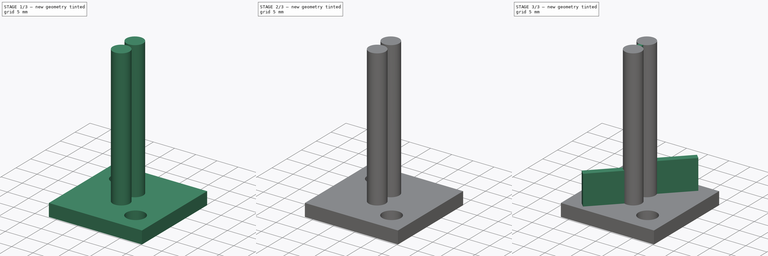
[diagram: build sequence overview — one tinted view per stage of 3, left to right]
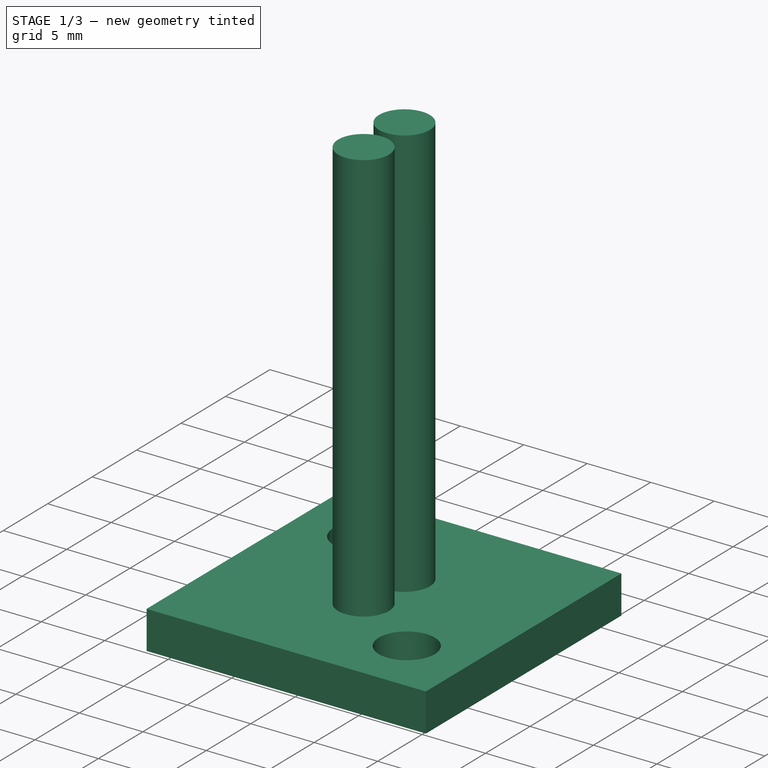
[diagram: stage 1 of 3 — iso view after this stage's code; geometry added in this stage tinted green]
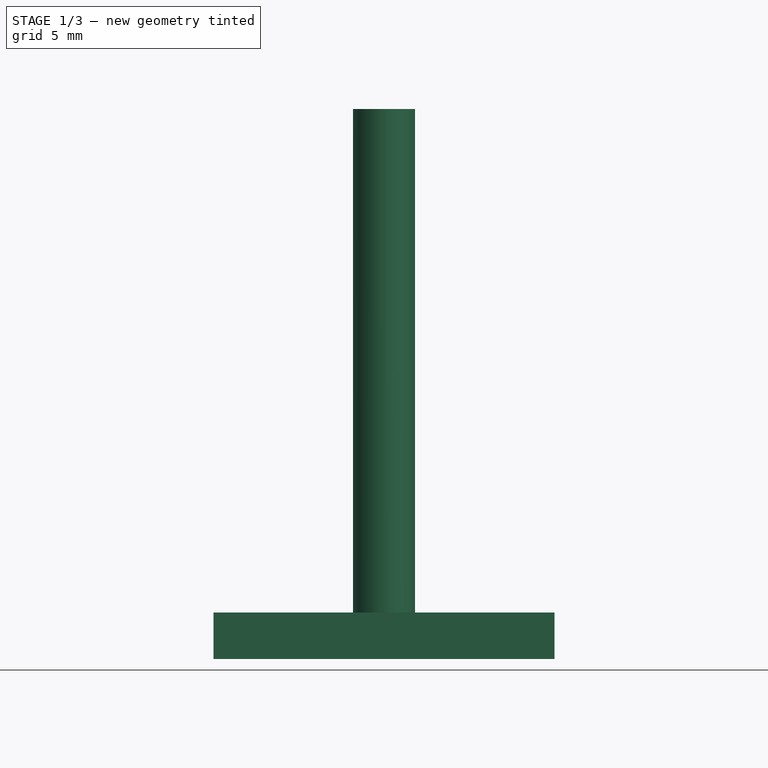
[diagram: stage 1 of 3 — front view after this stage's code; geometry added in this stage tinted green]
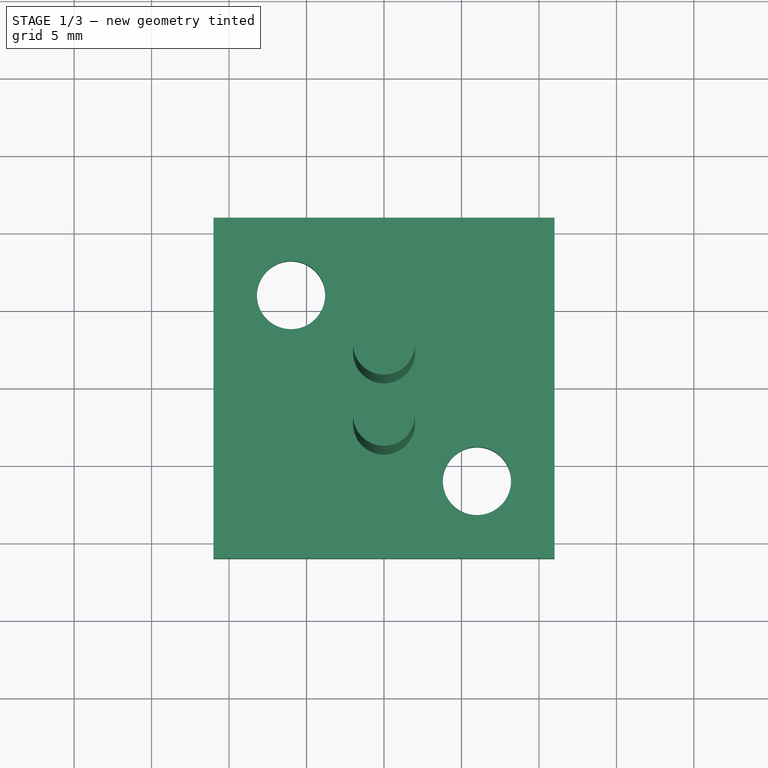
[diagram: stage 1 of 3 — top view after this stage's code; geometry added in this stage tinted green]
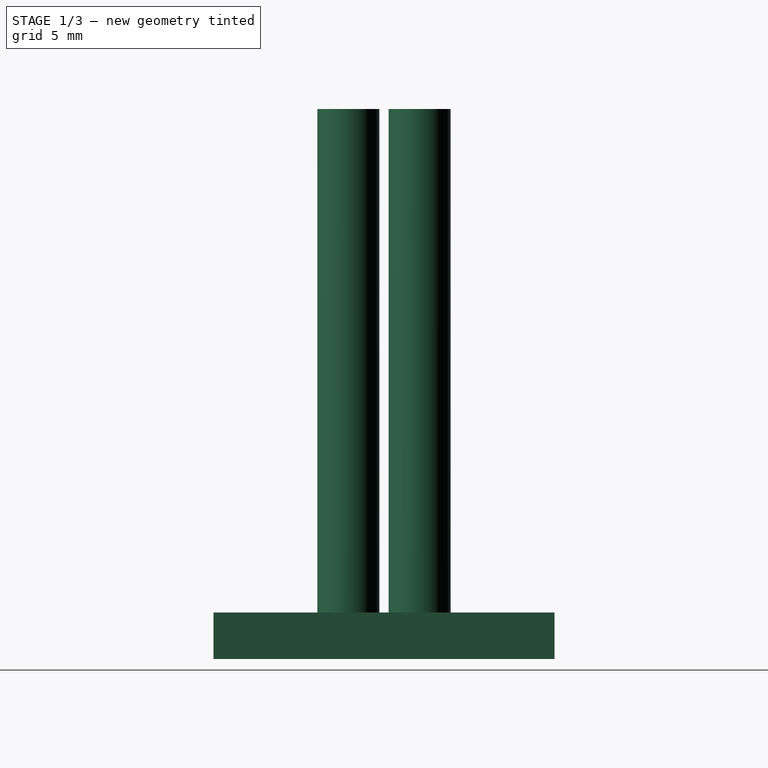
[diagram: stage 1 of 3 — right view after this stage's code; geometry added in this stage tinted green]
FCSTD DOCUMENT  (FreeCAD 0.21R33771 (Git))
Label: 16mm Film Guide
License: All rights reserved
LicenseURL: http://en.wikipedia.org/wiki/All_rights_reserved
objects: Sketcher::SketchObject×6, PartDesign::Pad×5, PartDesign::Body×1, Part::Feature×1
note: 18 computed .brp shape members not serialized (recipe doc carries the construction recipe); baked Part::Feature solids carry a one-line shape summary decoded from their .brp

FEATURE [Sketcher::SketchObject] Sketch  label="Outlines"
  FullyConstrained = true
  MapMode = 5
  Support = -> [XY_Plane]
  sketch-geometry (12):
    g0: LineSegment StartX=-11 StartY=11 StartZ=0 EndX=11 EndY=11 EndZ=0
    g1: LineSegment StartX=11 StartY=11 StartZ=0 EndX=11 EndY=-11 EndZ=0
    g2: LineSegment StartX=11 StartY=-11 StartZ=0 EndX=-11 EndY=-11 EndZ=0
    g3: LineSegment StartX=-11 StartY=-11 StartZ=0 EndX=-11 EndY=11 EndZ=0
    g4: Circle CenterX=-6 CenterY=6 CenterZ=0 NormalX=0 NormalY=0 NormalZ=1 AngleXU=0 Radius=2.2
    g5: Circle CenterX=-6 CenterY=6 CenterZ=0 NormalX=0 NormalY=0 NormalZ=1 AngleXU=0 Radius=4.1
    g6: Circle CenterX=6 CenterY=-6 CenterZ=0 NormalX=0 NormalY=0 NormalZ=1 AngleXU=0 Radius=2.2
    g7: Circle CenterX=6 CenterY=-6 CenterZ=0 NormalX=0 NormalY=0 NormalZ=1 AngleXU=0 Radius=4.1
    g8: Circle CenterX=0 CenterY=2.3 CenterZ=0 NormalX=0 NormalY=0 NormalZ=1 AngleXU=0 Radius=2
    g9: Circle CenterX=0 CenterY=-2.3 CenterZ=0 NormalX=0 NormalY=0 NormalZ=1 AngleXU=0 Radius=2
    g10: GeomPoint X=0 Y=0.3 Z=0
    g11: GeomPoint X=0 Y=-0.3 Z=0
  constraints (30):
    c: Coincident(g0,g1)
    c: Coincident(g1,g2)
    c: Coincident(g2,g3)
    c: Coincident(g3,g0)
    c: Horizontal(g0)
    c: Horizontal(g2)
    c: Vertical(g1)
    c: Vertical(g3)
    c: Coincident(g5,g4)
    c: Radius(g4) = 2.2
    c: Radius(g5) = 4.1
    c: DistanceY(g4,g0) = 5
    c: DistanceX(g0,g4) = 5
    c: Coincident(g7,g6)
    c: Equal(g6,g4)
    c: Equal(g7,g5)
    c: DistanceX(g6,g1) = 5
    c: DistanceY(g1,g6) = 5
    c: PointOnObject(g8,g-2)
    c: PointOnObject(g9,g-2)
    c: Equal(g8,g9)
    c: Radius(g8) = 2
    c: PointOnObject(g10,g8)
    c: PointOnObject(g11,g9)
    c: PointOnObject(g11,g-2)
    c: DistanceY(g11,g10) = 0.6
    c: Symmetric(g10,g11,g-1)
    c: Equal(g1,g0)
    c: Symmetric(g0,g2,g-1)
    c: DistanceX(g0,g0) = 22
FEATURE [Sketcher::SketchObject] Sketch001
  ExternalGeometry = -> [Sketch]
  FullyConstrained = true
  MapMode = 5
  Support = -> [XY_Plane]
  sketch-geometry (6):
    g0: LineSegment StartX=-11 StartY=11 StartZ=0 EndX=11 EndY=11 EndZ=0
    g1: LineSegment StartX=11 StartY=11 StartZ=0 EndX=11 EndY=-11 EndZ=0
    g2: LineSegment StartX=11 StartY=-11 StartZ=0 EndX=-11 EndY=-11 EndZ=0
    g3: LineSegment StartX=-11 StartY=-11 StartZ=0 EndX=-11 EndY=11 EndZ=0
    g4: Circle CenterX=-6 CenterY=6 CenterZ=0 NormalX=0 NormalY=0 NormalZ=1 AngleXU=0 Radius=2.2
    g5: Circle CenterX=6 CenterY=-6 CenterZ=0 NormalX=0 NormalY=0 NormalZ=1 AngleXU=0 Radius=2.2
  constraints (14):
    c: Coincident(g0,g1)
    c: Coincident(g1,g2)
    c: Coincident(g2,g3)
    c: Coincident(g3,g0)
    c: Horizontal(g0)
    c: Horizontal(g2)
    c: Vertical(g1)
    c: Vertical(g3)
    c: Coincident(g0,g-3)
    c: Coincident(g1,g-4)
    c: Coincident(g4,g-5)
    c: Coincident(g5,g-6)
    c: Equal(g5,g4)
    c: Equal(g4,g-5)
FEATURE [PartDesign::Pad] Pad  label="Base"
  Direction = (0,0,1)
  Length = 3
  Length2 = 10
  Profile = -> Sketch001
  ReferenceAxis = -> Sketch001 [N_Axis]
  Type = 0
FEATURE [Sketcher::SketchObject] Sketch002
  ExternalGeometry = -> [Sketch]
  FullyConstrained = true
  MapMode = 5
  Placement = pos=(0,0,3) rot=(0,0,1;0rad)
  Support = -> [Pad]
  sketch-geometry (2):
    g0: Circle CenterX=0 CenterY=2.3 CenterZ=0 NormalX=0 NormalY=0 NormalZ=1 AngleXU=0 Radius=2
    g1: Circle CenterX=0 CenterY=-2.3 CenterZ=0 NormalX=0 NormalY=0 NormalZ=1 AngleXU=0 Radius=2
  constraints (4):
    c: Coincident(g0,g-3)
    c: Coincident(g1,g-4)
    c: Equal(g1,g0)
    c: Equal(g0,g-3)
FEATURE [PartDesign::Pad] Pad001  label="Pins"
  BaseFeature = -> Pad
  Direction = (0,0,1)
  Length = 32.5
  Length2 = 10
  Profile = -> Sketch002
  ReferenceAxis = -> Sketch002 [N_Axis]
  Type = 0
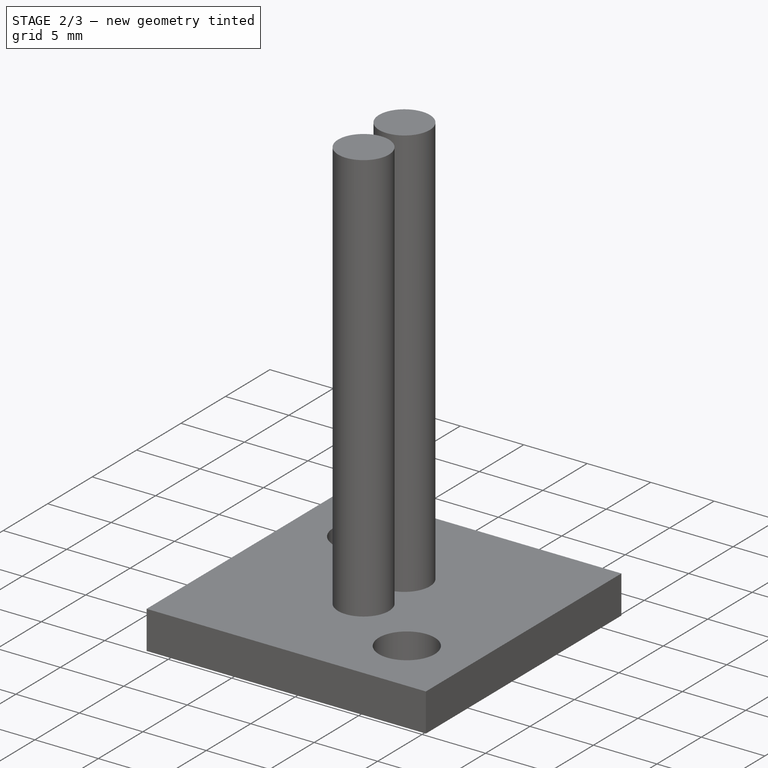
[diagram: stage 2 of 3 — iso view after this stage's code; geometry added in this stage tinted green]
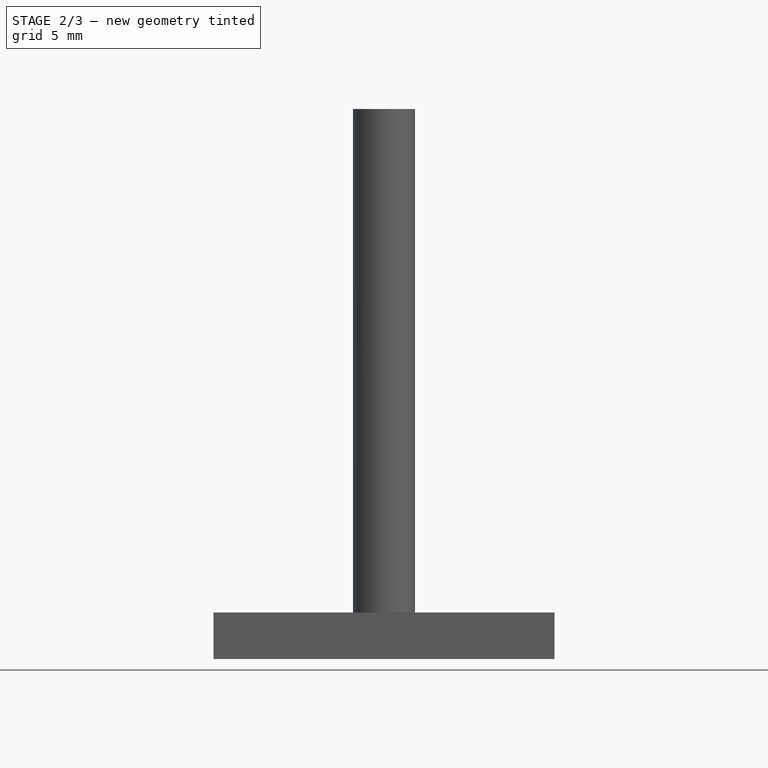
[diagram: stage 2 of 3 — front view after this stage's code; geometry added in this stage tinted green]
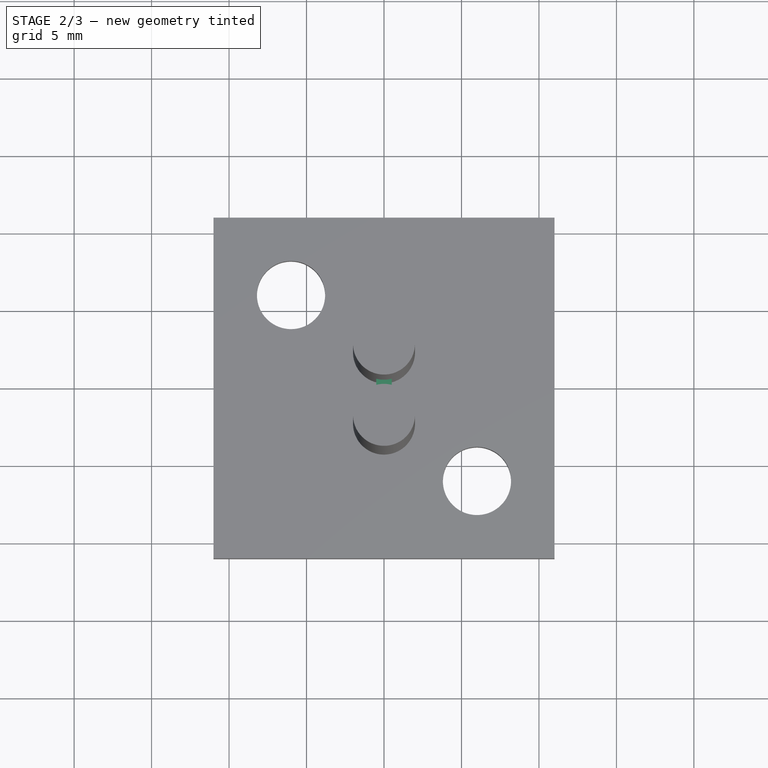
[diagram: stage 2 of 3 — top view after this stage's code; geometry added in this stage tinted green]
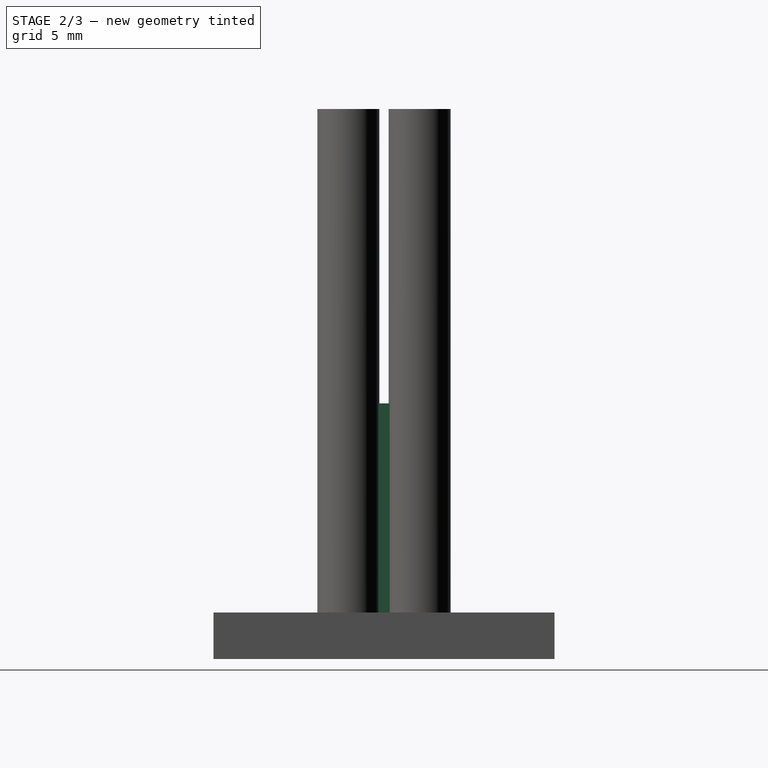
[diagram: stage 2 of 3 — right view after this stage's code; geometry added in this stage tinted green]
FEATURE [Sketcher::SketchObject] Sketch003
  ExternalGeometry = -> [Pad001]
  FullyConstrained = true
  MapMode = 5
  Placement = pos=(0,0,3) rot=(0,0,1;0rad)
  Support = -> [Pad001]
  sketch-geometry (4):
    g0: LineSegment StartX=-0.5 StartY=0.363508 StartZ=0 EndX=0.5 EndY=0.363508 EndZ=0
    g1: LineSegment StartX=0.5 StartY=0.363508 StartZ=0 EndX=0.5 EndY=-0.363508 EndZ=0
    g2: LineSegment StartX=0.5 StartY=-0.363508 StartZ=0 EndX=-0.5 EndY=-0.363508 EndZ=0
    g3: LineSegment StartX=-0.5 StartY=-0.363508 StartZ=0 EndX=-0.5 EndY=0.363508 EndZ=0
  constraints (12):
    c: Coincident(g0,g1)
    c: Coincident(g1,g2)
    c: Coincident(g2,g3)
    c: Coincident(g3,g0)
    c: Horizontal(g0)
    c: Horizontal(g2)
    c: Vertical(g1)
    c: Vertical(g3)
    c: DistanceX(g0,g0) = 1
    c: PointOnObject(g0,g-3)
    c: PointOnObject(g2,g-4)
    c: PointOnObject(g1,g-4)
FEATURE [PartDesign::Pad] Pad002  label="Fill"
  BaseFeature = -> Pad001
  Direction = (0,0,1)
  Length = 13.5
  Length2 = 10
  Profile = -> Sketch003
  ReferenceAxis = -> Sketch003 [N_Axis]
  Type = 0
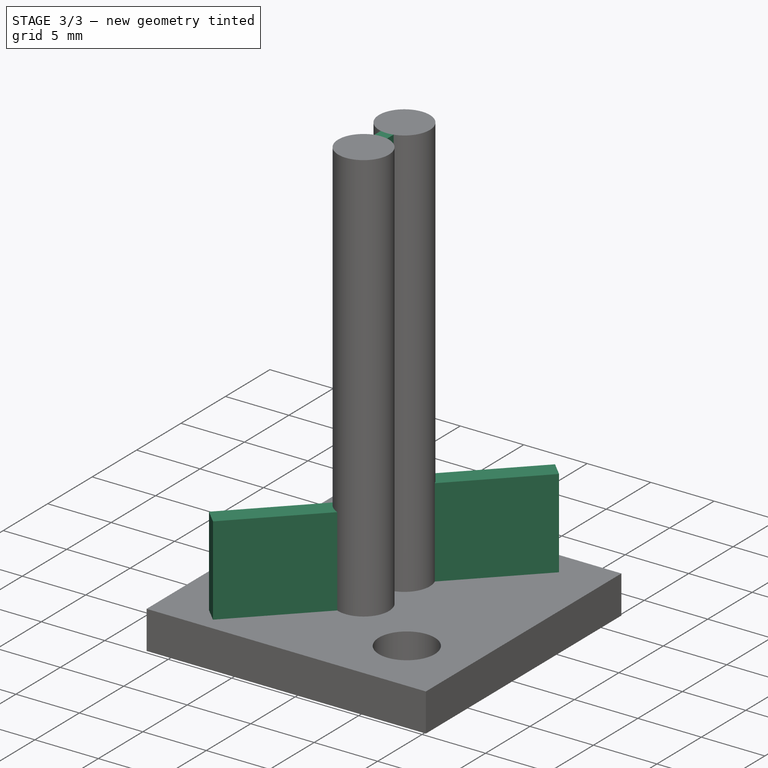
[diagram: stage 3 of 3 — iso view after this stage's code; geometry added in this stage tinted green]
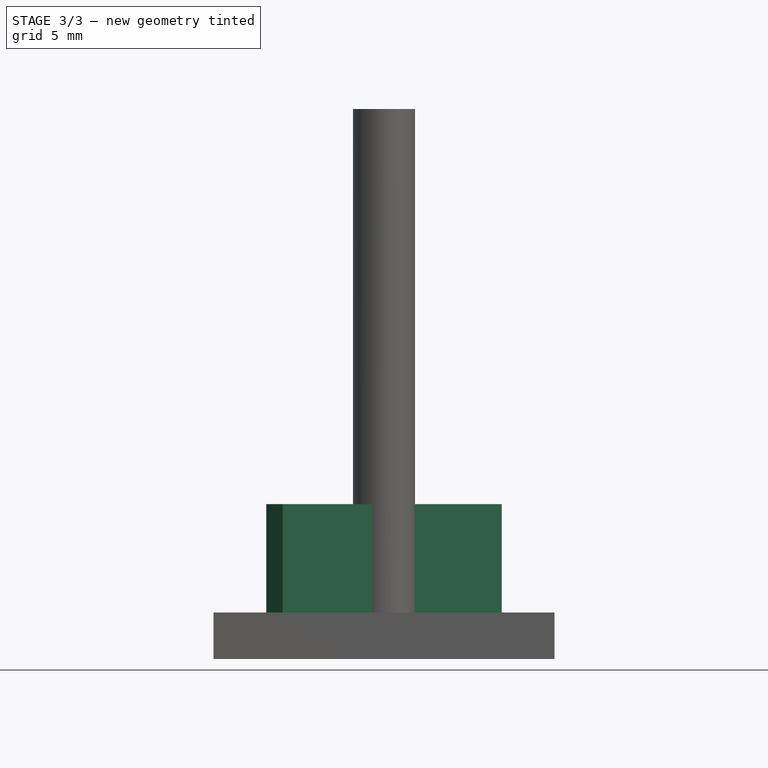
[diagram: stage 3 of 3 — front view after this stage's code; geometry added in this stage tinted green]
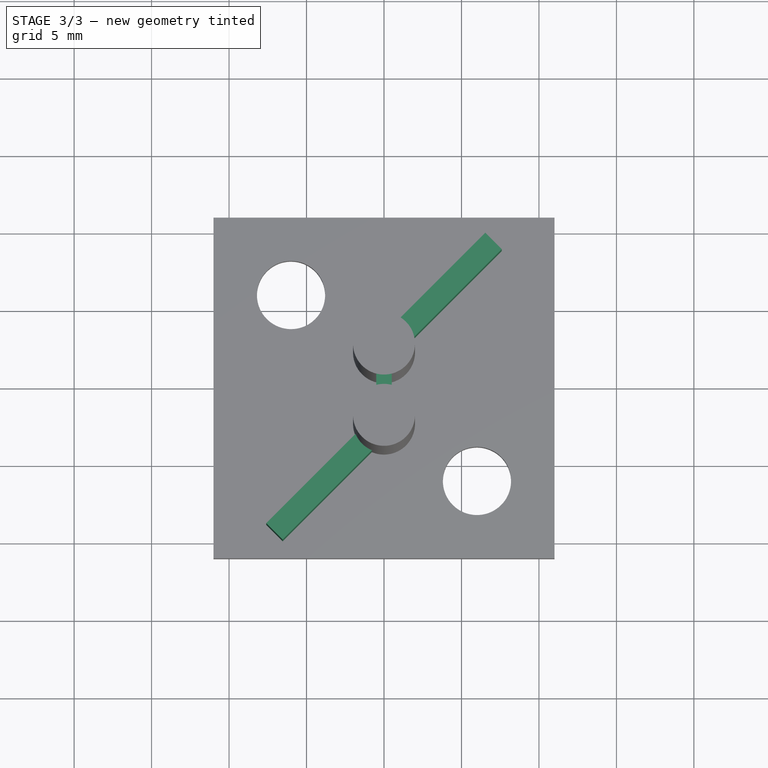
[diagram: stage 3 of 3 — top view after this stage's code; geometry added in this stage tinted green]
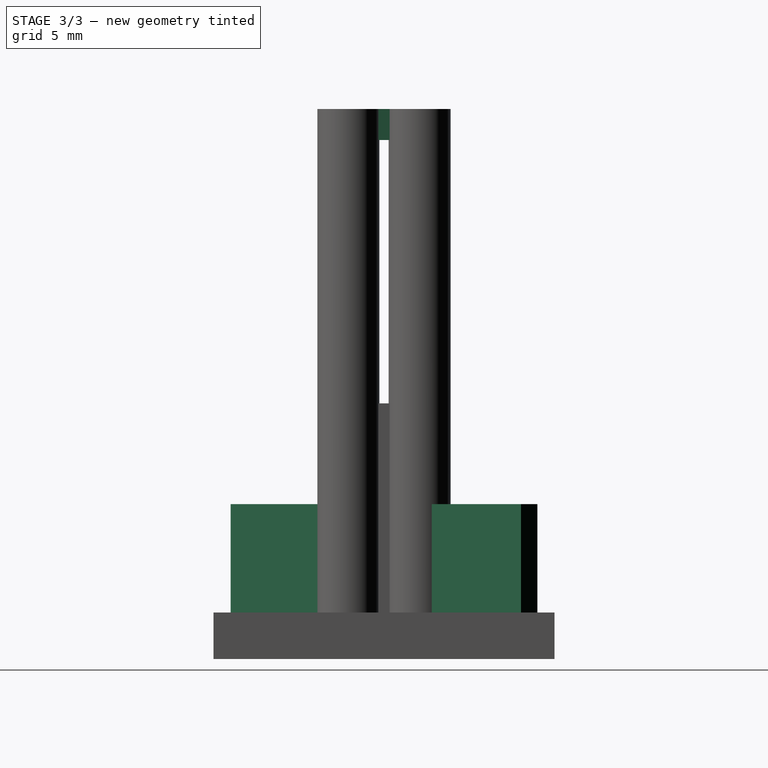
[diagram: stage 3 of 3 — right view after this stage's code; geometry added in this stage tinted green]
FEATURE [Sketcher::SketchObject] Sketch004
  ExternalGeometry = -> [Pad002]
  FullyConstrained = true
  MapMode = 5
  Placement = pos=(0,0,35.5) rot=(0,0,1;0rad)
  Support = -> [Pad002]
  sketch-geometry (4):
    g0: LineSegment StartX=-0.5 StartY=0.363508 StartZ=0 EndX=0.5 EndY=0.363508 EndZ=0
    g1: LineSegment StartX=0.5 StartY=0.363508 StartZ=0 EndX=0.5 EndY=-0.363508 EndZ=0
    g2: LineSegment StartX=0.5 StartY=-0.363508 StartZ=0 EndX=-0.5 EndY=-0.363508 EndZ=0
    g3: LineSegment StartX=-0.5 StartY=-0.363508 StartZ=0 EndX=-0.5 EndY=0.363508 EndZ=0
  constraints (10):
    c: Coincident(g0,g1)
    c: Coincident(g1,g2)
    c: Coincident(g2,g3)
    c: Coincident(g3,g0)
    c: Horizontal(g0)
    c: Horizontal(g2)
    c: Vertical(g1)
    c: Vertical(g3)
    c: Coincident(g0,g-4)
    c: Coincident(g1,g-3)
FEATURE [PartDesign::Pad] Pad003  label="TopFill"
  BaseFeature = -> Pad002
  Direction = (0,0,1)
  Length = 2
  Length2 = 10
  Profile = -> Sketch004
  ReferenceAxis = -> Sketch004 [N_Axis]
  Reversed = true
  Type = 0
FEATURE [Sketcher::SketchObject] Sketch005
  ExternalGeometry = -> [Pad003]
  FullyConstrained = true
  MapMode = 5
  Placement = pos=(0,0,3) rot=(0,0,1;0rad)
  Support = -> [Pad003]
  sketch-geometry (10):
    g0: LineSegment StartX=-0.53033 StartY=2.83033 StartZ=0 EndX=6.54074 EndY=9.9014 EndZ=0
    g1: LineSegment StartX=6.54074 StartY=9.9014 StartZ=0 EndX=7.6014 EndY=8.84074 EndZ=0
    g2: LineSegment StartX=7.6014 StartY=8.84074 StartZ=0 EndX=0.53033 EndY=1.76967 EndZ=0
    g3: LineSegment StartX=0.53033 StartY=1.76967 StartZ=0 EndX=-0.53033 EndY=2.83033 EndZ=0
    g4: LineSegment StartX=-0.53033 StartY=-1.76967 StartZ=0 EndX=0.53033 EndY=-2.83033 EndZ=0
    g5: LineSegment StartX=0.53033 StartY=-2.83033 StartZ=0 EndX=-6.54074 EndY=-9.9014 EndZ=0
    g6: LineSegment StartX=-6.54074 StartY=-9.9014 StartZ=0 EndX=-7.6014 EndY=-8.84074 EndZ=0
    g7: LineSegment StartX=-7.6014 StartY=-8.84074 StartZ=0 EndX=-0.53033 EndY=-1.76967 EndZ=0
    g8: GeomPoint X=0 Y=2.3 Z=0
    g9: GeomPoint X=0 Y=-2.3 Z=0
  constraints (24):
    c: Coincident(g0,g1)
    c: Coincident(g1,g2)
    c: Coincident(g2,g3)
    c: Coincident(g3,g0)
    c: Coincident(g4,g5)
    c: Coincident(g5,g6)
    c: Coincident(g6,g7)
    c: Coincident(g7,g4)
    c: Perpendicular(g3,g2)
    c: Perpendicular(g3,g0)
    c: Perpendicular(g1,g2)
    c: Distance(g3) = 1.5
    c: Symmetric(g0,g2,g8)
    c: Coincident(g8,g-3)
    c: Angle(g-1,g2) = 0.785398
    c: Distance(g0) = 10
    c: Perpendicular(g7,g6)
    c: Perpendicular(g5,g6)
    c: Perpendicular(g5,g4)
    c: Symmetric(g4,g4,g9)
    c: Coincident(g9,g-4)
    c: Equal(g4,g3)
    c: Equal(g7,g2)
    c: Angle(g-1,g7) = 0.785398
FEATURE [PartDesign::Pad] Pad004
  BaseFeature = -> Pad003
  Direction = (0,0,1)
  Length = 7
  Length2 = 10
  Profile = -> Sketch005
  ReferenceAxis = -> Sketch005 [N_Axis]
  Type = 0
FEATURE [PartDesign::Body] Body
  Group = -> [Sketch,Sketch001,Pad,Sketch002,Pad001,Sketch003,Pad002,Sketch004,Pad003,Sketch005,Pad004]
  Origin = -> Origin
  Tip = -> Pad004
FEATURE [Part::Feature] Body001
  shape: bbox 22 x 22 x 35.5 mm, 29 faces (baked)
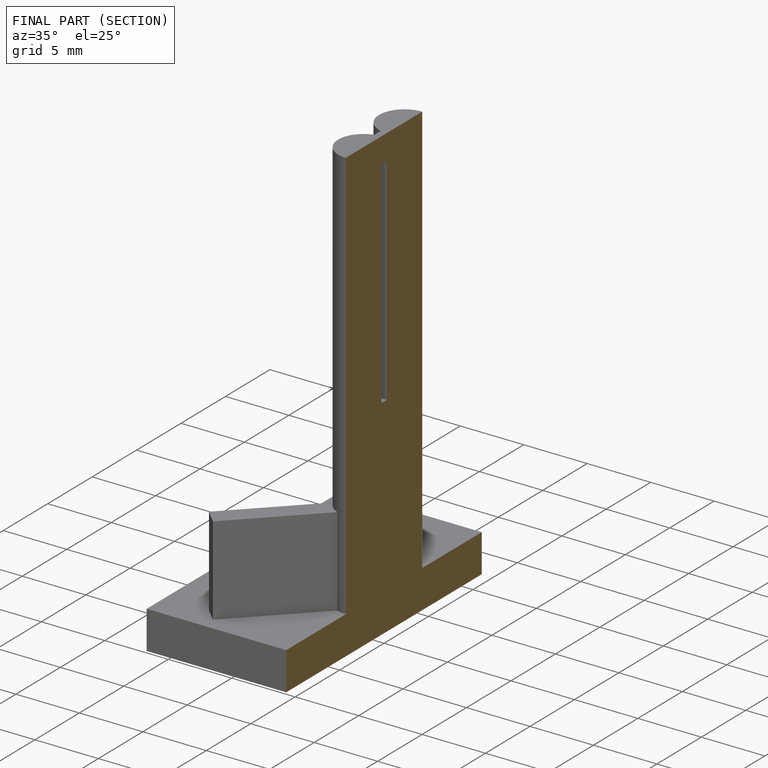
[diagram: finished part — half-section view (interior)]
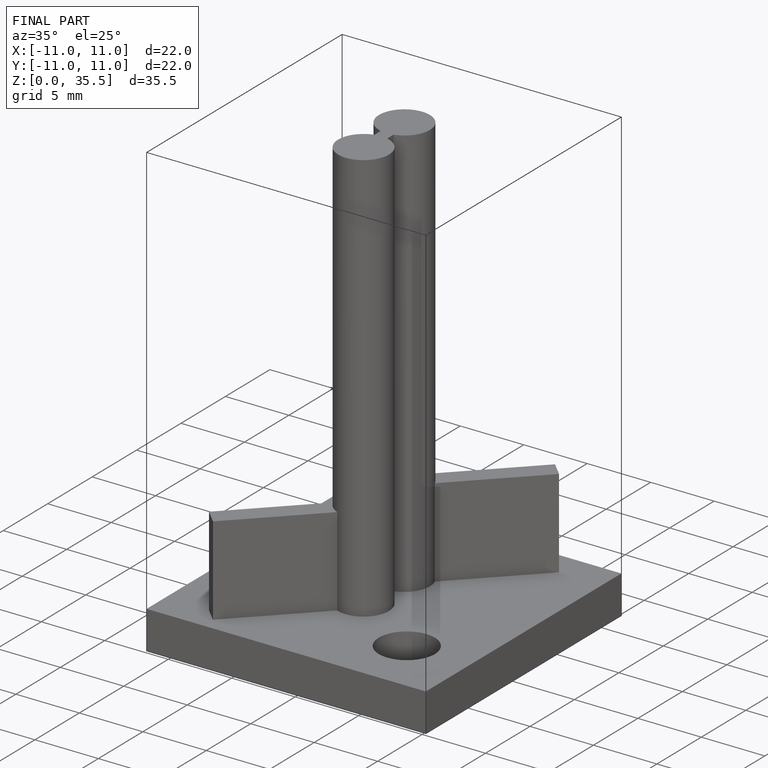
[diagram: finished part — iso view with bounding-box wireframe]
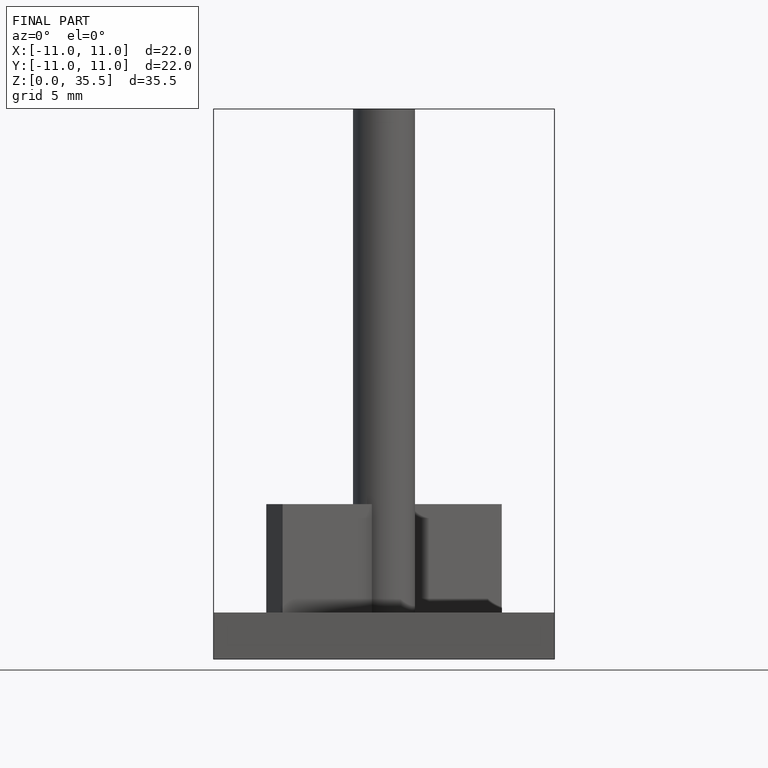
[diagram: finished part — front view with bounding-box wireframe]
